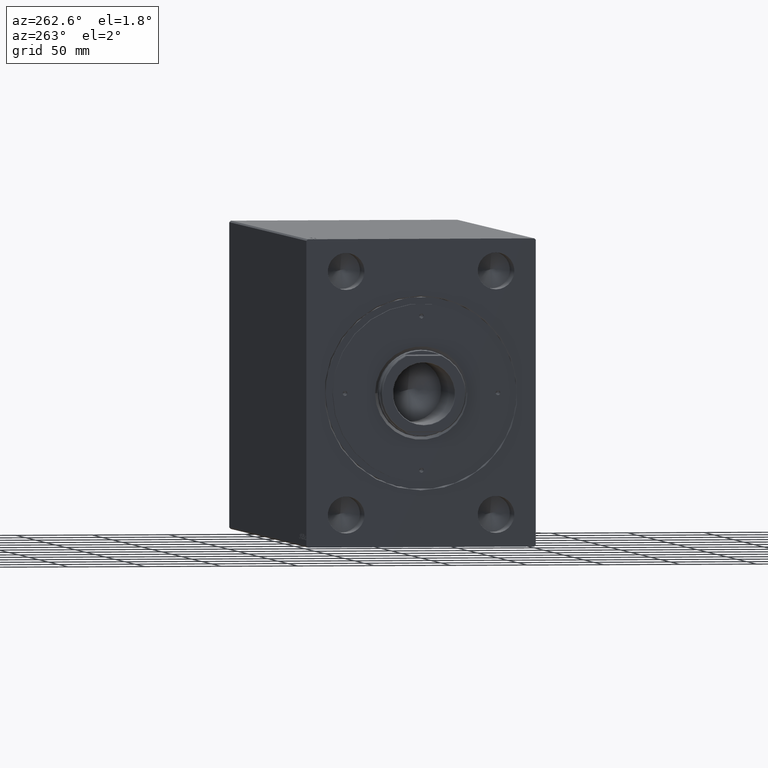
[diagram: clean part render]
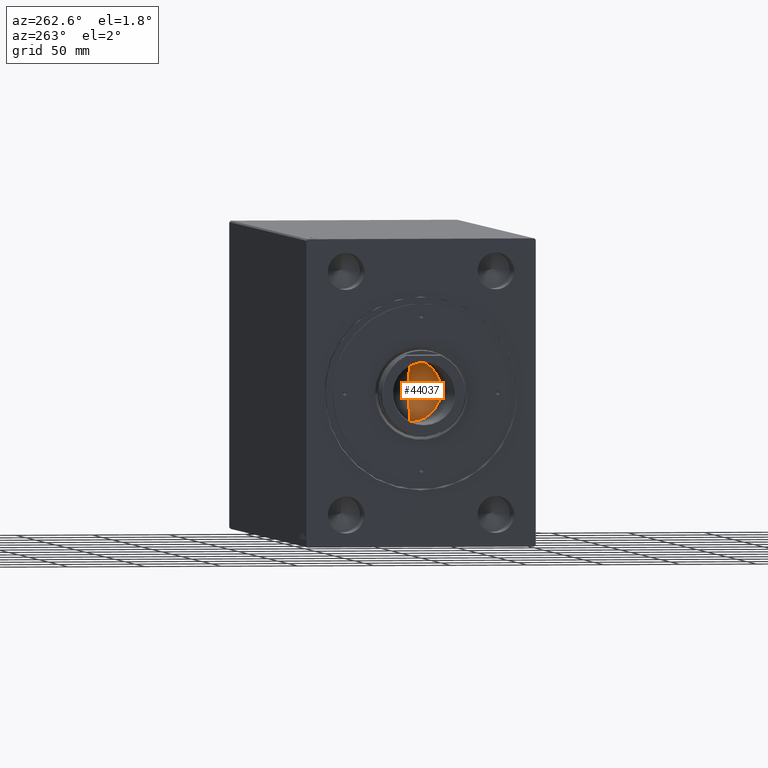
[diagram: same view with one face highlighted and labeled with its STEP entity id]
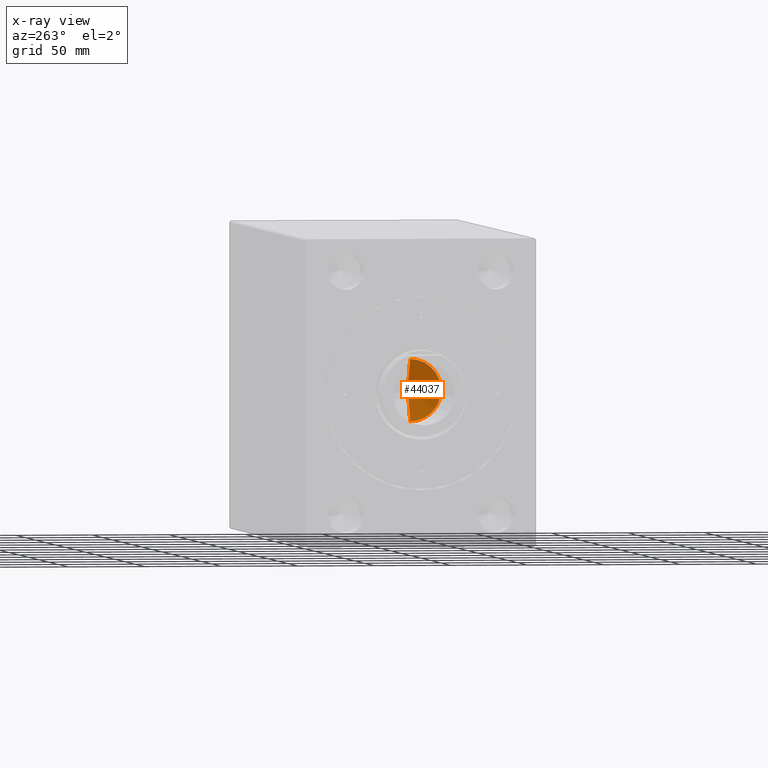
[diagram: x-ray of the same camera — body ghosted, the highlighted face saturated]
A machine part, auxiliary view. The second image highlights one B-rep face of the part: STEP entity #44037.
The next image is the same camera in x-ray: the body ghosted, the highlighted face saturated — about 3% of this face is hidden behind the body in this view.
In plain terms, the highlighted conical surface has half-angle 59 deg.
Its self-contained STEP definition (entity closure, byte-faithful):
#280 = CARTESIAN_POINT ( 'NONE',  ( -20.24999999999998224, 2.479909768273388328E-15, 299.7000000000000455 ) ) ;
#525 = CONICAL_SURFACE ( 'NONE', #19018, 20.24999999999998224, 1.029744258676654312 ) ;
#542 = EDGE_LOOP ( 'NONE', ( #18507, #37848, #39743 ) ) ;
#609 = EDGE_CURVE ( 'NONE', #12540, #29329, #26791, .T. ) ;
#861 = DIRECTION ( 'NONE',  ( -0.000000000000000000, -0.000000000000000000, 1.000000000000000000 ) ) ;
#872 = DIRECTION ( 'NONE',  ( 1.000000000000000000, 0.000000000000000000, 0.000000000000000000 ) ) ;
#3989 = CARTESIAN_POINT ( 'NONE',  ( 0.000000000000000000, 0.000000000000000000, 299.7000000000000455 ) ) ;
#4519 = VECTOR ( 'NONE', #42304, 1000.000000000000000 ) ;
#6254 = DIRECTION ( 'NONE',  ( 0.8571673007021122226, 0.000000000000000000, 0.5150380749100542666 ) ) ;
#7339 = VECTOR ( 'NONE', #6254, 1000.000000000000000 ) ;
#12540 = VERTEX_POINT ( 'NONE', #280 ) ;
#12615 = CARTESIAN_POINT ( 'NONE',  ( -1.827619939556002415E-14, 0.000000000000000000, 287.5325724646919525 ) ) ;
#13265 = CARTESIAN_POINT ( 'NONE',  ( 20.24999999999998224, 0.000000000000000000, 299.7000000000000455 ) ) ;
#14246 = CARTESIAN_POINT ( 'NONE',  ( 0.000000000000000000, 0.000000000000000000, 299.7000000000000455 ) ) ;
#14718 = AXIS2_PLACEMENT_3D ( 'NONE', #14246, #20686, #872 ) ;
#15405 = LINE ( 'NONE', #38749, #4519 ) ;
#17631 = VERTEX_POINT ( 'NONE', #12615 ) ;
#18507 = ORIENTED_EDGE ( 'NONE', *, *, #27713, .F. ) ;
#19018 = AXIS2_PLACEMENT_3D ( 'NONE', #3989, #861, #20672 ) ;
#20254 = LINE ( 'NONE', #43395, #7339 ) ;
#20672 = DIRECTION ( 'NONE',  ( 1.000000000000000000, 0.000000000000000000, 0.000000000000000000 ) ) ;
#20686 = DIRECTION ( 'NONE',  ( -0.000000000000000000, -0.000000000000000000, 1.000000000000000000 ) ) ;
#24001 = EDGE_CURVE ( 'NONE', #17631, #12540, #15405, .T. ) ;
#26791 = CIRCLE ( 'NONE', #14718, 20.24999999999998224 ) ;
#27713 = EDGE_CURVE ( 'NONE', #17631, #29329, #20254, .T. ) ;
#29329 = VERTEX_POINT ( 'NONE', #13265 ) ;
#34476 = FACE_OUTER_BOUND ( 'NONE', #542, .T. ) ;
#37848 = ORIENTED_EDGE ( 'NONE', *, *, #24001, .T. ) ;
#38749 = CARTESIAN_POINT ( 'NONE',  ( -20.24999999999998224, 2.479909768273388328E-15, 299.7000000000000455 ) ) ;
#39743 = ORIENTED_EDGE ( 'NONE', *, *, #609, .T. ) ;
#42304 = DIRECTION ( 'NONE',  ( -0.8571673007021122226, 1.049727191138618572E-16, 0.5150380749100542666 ) ) ;
#43395 = CARTESIAN_POINT ( 'NONE',  ( 20.24999999999998224, 0.000000000000000000, 299.7000000000000455 ) ) ;
#44037 = ADVANCED_FACE ( 'NONE', ( #34476 ), #525, .F. ) ;